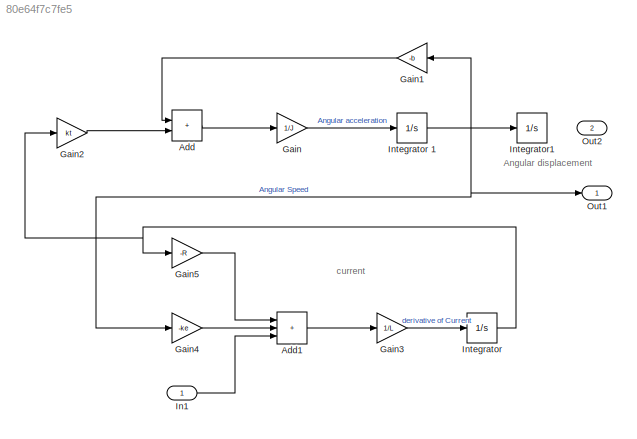
MODEL slx_80e64f7c7fe5
KIND model
CONFIG AbsTol = auto
CONFIG EnableMultiTasking = off
CONFIG FixedStep = auto
CONFIG InitFcn = R=8.70\nkt=0.0334\nke=0.0334\nJ=1.80e-6\nL=0.00\nb=0.00
CONFIG MaxStep = auto
CONFIG MinStep = auto
CONFIG RelTol = 1e-3
CONFIG SampleTimeConstraint = Unconstrained
CONFIG SolverName = VariableStepAuto
CONFIG StartTime = 0.0
CONFIG StopTime = 10.0
BLOCK [Integrator]  Integrator 1
  Ports = [1, 1]
BLOCK [Sum] Add
  IconShape = rectangular
  Ports = [2, 1]
BLOCK [Sum] Add1
  IconShape = rectangular
  Inputs = +++
  Ports = [3, 1]
BLOCK [Gain] Gain
  Gain = 1/J
BLOCK [Gain] Gain1
  Gain = -b
  NameLocation = top
BLOCK [Gain] Gain2
  Gain = kt
BLOCK [Gain] Gain3
  Gain = 1/L
BLOCK [Gain] Gain4
  Gain = -ke
BLOCK [Gain] Gain5
  Gain = -R
BLOCK [Inport] In1
BLOCK [Integrator] Integrator
  Ports = [1, 1]
BLOCK [Integrator] Integrator1
  Ports = [1, 1]
BLOCK [Outport] Out1
BLOCK [Outport] Out2
  Port = 2
ANNOTATION (root): Angular displacement
ANNOTATION (root): current
NET  Integrator 1:1 -> Gain1:1, Gain4:1, Integrator1:1, Out1:1
LINE Add1:1 -> Gain3:1
LINE Add:1 -> Gain:1
LINE Gain1:1 -> Add:1
LINE Gain2:1 -> Add:2
LINE Gain3:1 -> Integrator:1
LINE Gain4:1 -> Add1:2
LINE Gain5:1 -> Add1:1
LINE Gain:1 ->  Integrator 1:1
LINE In1:1 -> Add1:3
NET Integrator:1 -> Gain2:1, Gain5:1
note: NET lines group one-source signal fan-out (src -> all destinations, sorted); 1:1 wires keep LINE
